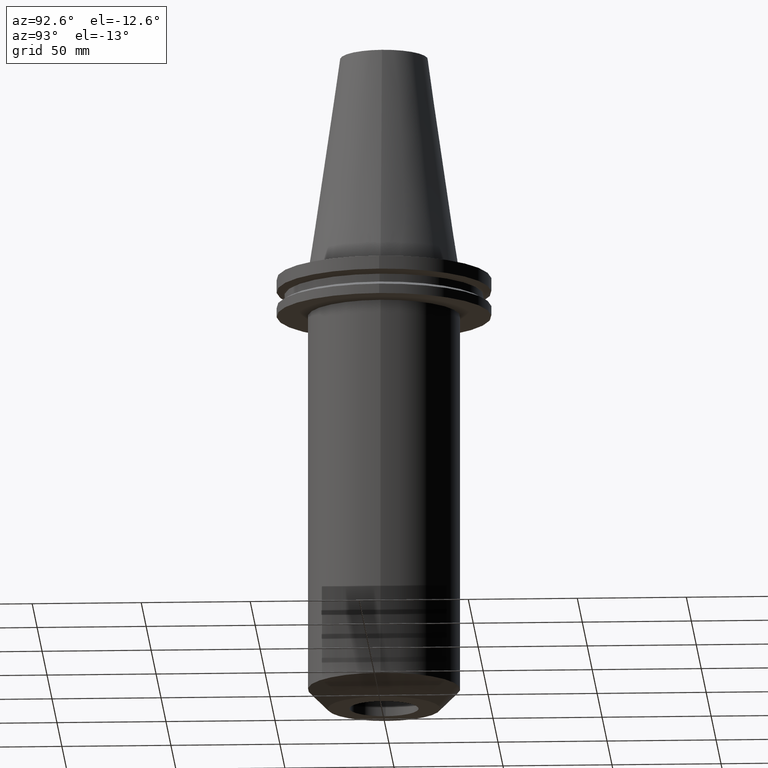
[diagram: clean part render]
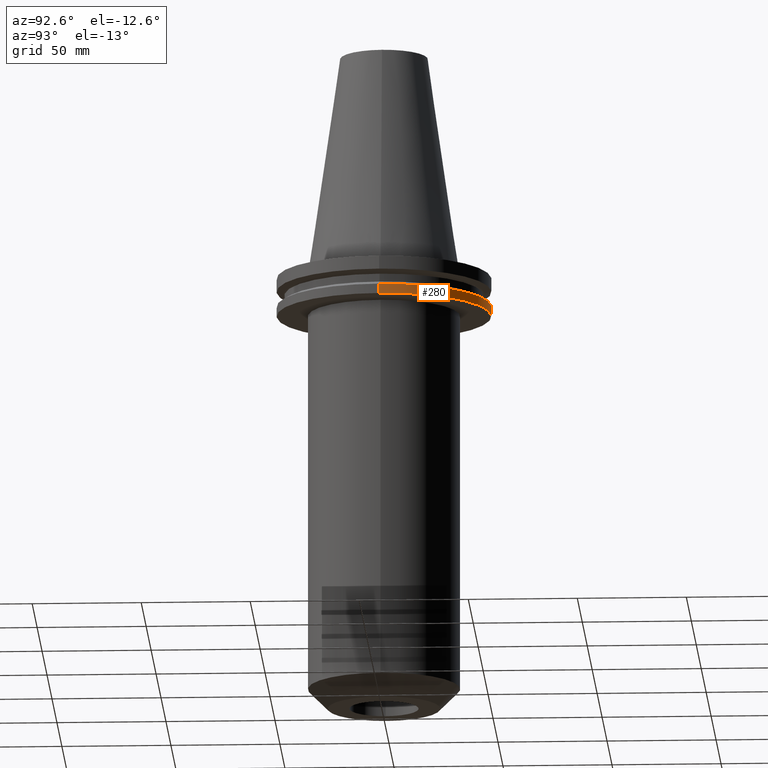
[diagram: same view with one face highlighted and labeled with its STEP entity id]
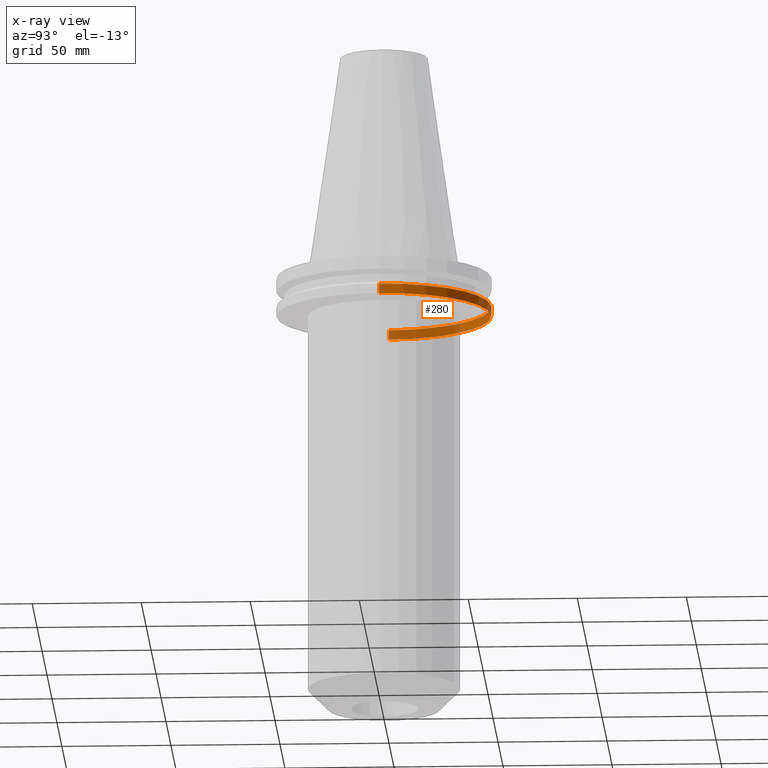
[diagram: x-ray of the same camera — body ghosted, the highlighted face saturated]
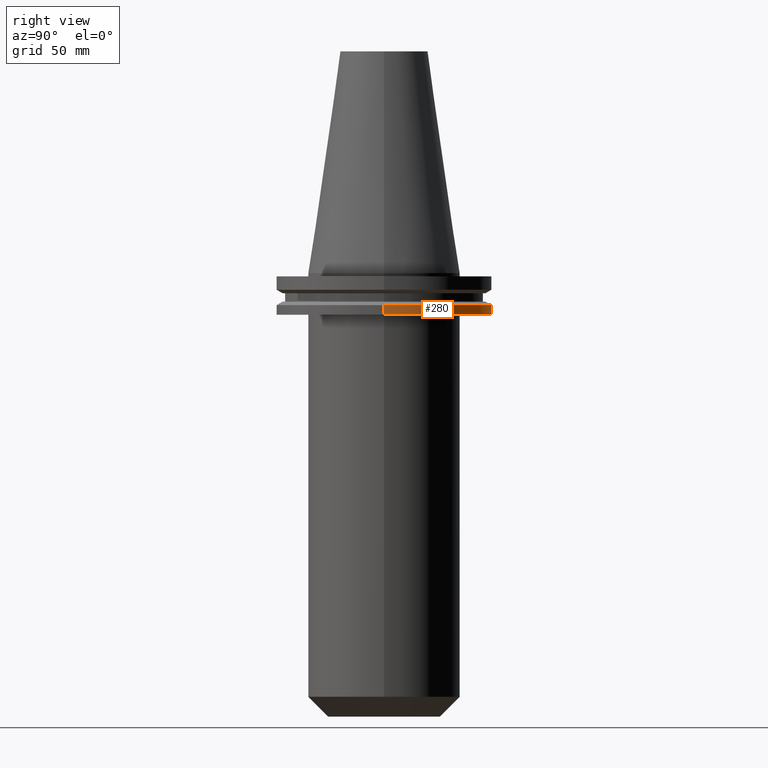
[diagram: same view with one face highlighted and labeled with its STEP entity id]
A machine part, auxiliary view. The second image highlights one B-rep face of the part: STEP entity #280.
The next image is the same camera in x-ray: the body ghosted, the highlighted face saturated — about 33% of this face is hidden behind the body in this view.
A second angle (right view) of the same face is appended — the face is thin or edge-on in the first view.
In plain terms, the highlighted cylindrical surface (partial cylindrical patch) has radius 49.215 mm, axis along (-0, -0, 1).
Its self-contained STEP definition (entity closure, byte-faithful):
#6 = CIRCLE ( 'NONE', #69, 49.21499999999998920 ) ;
#17 = FACE_OUTER_BOUND ( 'NONE', #364, .T. ) ;
#34 = DIRECTION ( 'NONE',  ( -0.000000000000000000, -0.000000000000000000, 1.000000000000000000 ) ) ;
#41 = EDGE_CURVE ( 'NONE', #761, #171, #53, .T. ) ;
#52 = DIRECTION ( 'NONE',  ( -0.000000000000000000, -0.000000000000000000, 1.000000000000000000 ) ) ;
#53 = LINE ( 'NONE', #290, #341 ) ;
#69 = AXIS2_PLACEMENT_3D ( 'NONE', #81, #736, #263 ) ;
#81 = CARTESIAN_POINT ( 'NONE',  ( 0.000000000000000000, 0.000000000000000000, -14.65761014474876944 ) ) ;
#124 = AXIS2_PLACEMENT_3D ( 'NONE', #376, #34, #373 ) ;
#147 = CYLINDRICAL_SURFACE ( 'NONE', #124, 49.21499999999998920 ) ;
#171 = VERTEX_POINT ( 'NONE', #727 ) ;
#192 = CARTESIAN_POINT ( 'NONE',  ( -49.21499999999998920, 6.027099222003697037E-15, -19.04999999999999716 ) ) ;
#199 = VERTEX_POINT ( 'NONE', #192 ) ;
#232 = VECTOR ( 'NONE', #521, 1000.000000000000000 ) ;
#263 = DIRECTION ( 'NONE',  ( 1.000000000000000000, 0.000000000000000000, 0.000000000000000000 ) ) ;
#280 = ADVANCED_FACE ( 'NONE', ( #17 ), #147, .T. ) ;
#290 = CARTESIAN_POINT ( 'NONE',  ( 49.21499999999998920, 0.000000000000000000, 101.5999999999999943 ) ) ;
#341 = VECTOR ( 'NONE', #654, 1000.000000000000000 ) ;
#362 = EDGE_CURVE ( 'NONE', #171, #741, #6, .T. ) ;
#364 = EDGE_LOOP ( 'NONE', ( #496, #705, #397, #432 ) ) ;
#373 = DIRECTION ( 'NONE',  ( 1.000000000000000000, 0.000000000000000000, 0.000000000000000000 ) ) ;
#376 = CARTESIAN_POINT ( 'NONE',  ( 0.000000000000000000, 0.000000000000000000, 101.5999999999999943 ) ) ;
#388 = CARTESIAN_POINT ( 'NONE',  ( 0.000000000000000000, 0.000000000000000000, -19.04999999999999716 ) ) ;
#397 = ORIENTED_EDGE ( 'NONE', *, *, #362, .F. ) ;
#417 = EDGE_CURVE ( 'NONE', #199, #741, #508, .T. ) ;
#423 = EDGE_CURVE ( 'NONE', #761, #199, #732, .T. ) ;
#432 = ORIENTED_EDGE ( 'NONE', *, *, #41, .F. ) ;
#472 = AXIS2_PLACEMENT_3D ( 'NONE', #388, #52, #629 ) ;
#496 = ORIENTED_EDGE ( 'NONE', *, *, #423, .T. ) ;
#508 = LINE ( 'NONE', #704, #232 ) ;
#521 = DIRECTION ( 'NONE',  ( -0.000000000000000000, -0.000000000000000000, 1.000000000000000000 ) ) ;
#611 = CARTESIAN_POINT ( 'NONE',  ( -49.21499999999998920, 6.027099222003697037E-15, -14.65761014474876944 ) ) ;
#629 = DIRECTION ( 'NONE',  ( 1.000000000000000000, 0.000000000000000000, 0.000000000000000000 ) ) ;
#654 = DIRECTION ( 'NONE',  ( -0.000000000000000000, -0.000000000000000000, 1.000000000000000000 ) ) ;
#665 = CARTESIAN_POINT ( 'NONE',  ( 49.21499999999998920, 0.000000000000000000, -19.04999999999999716 ) ) ;
#704 = CARTESIAN_POINT ( 'NONE',  ( -49.21499999999998920, 6.027099222003697037E-15, 101.5999999999999943 ) ) ;
#705 = ORIENTED_EDGE ( 'NONE', *, *, #417, .T. ) ;
#727 = CARTESIAN_POINT ( 'NONE',  ( 49.21499999999998920, 0.000000000000000000, -14.65761014474876944 ) ) ;
#732 = CIRCLE ( 'NONE', #472, 49.21499999999998920 ) ;
#736 = DIRECTION ( 'NONE',  ( -0.000000000000000000, -0.000000000000000000, 1.000000000000000000 ) ) ;
#741 = VERTEX_POINT ( 'NONE', #611 ) ;
#761 = VERTEX_POINT ( 'NONE', #665 ) ;